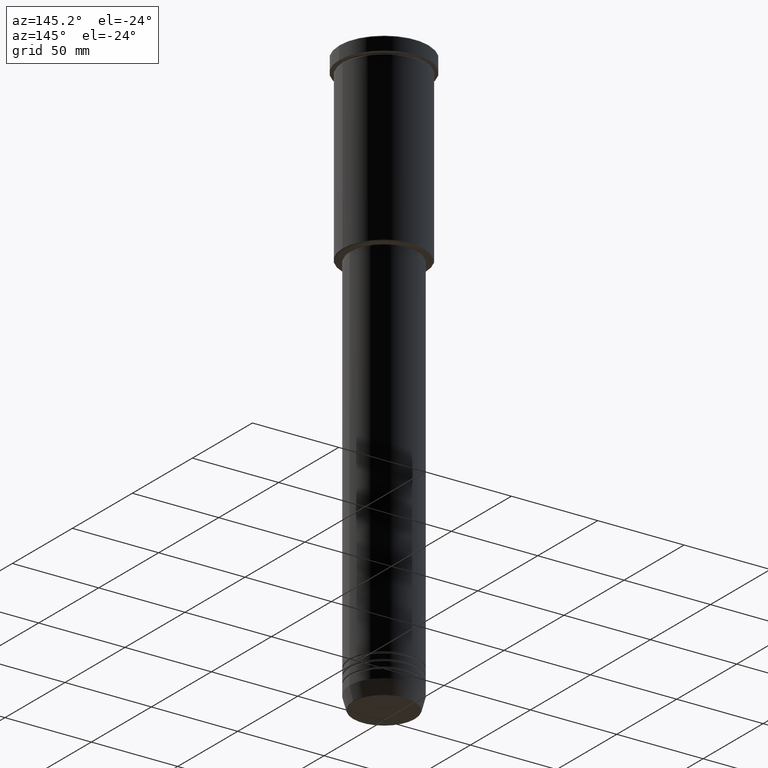
[diagram: clean part render]
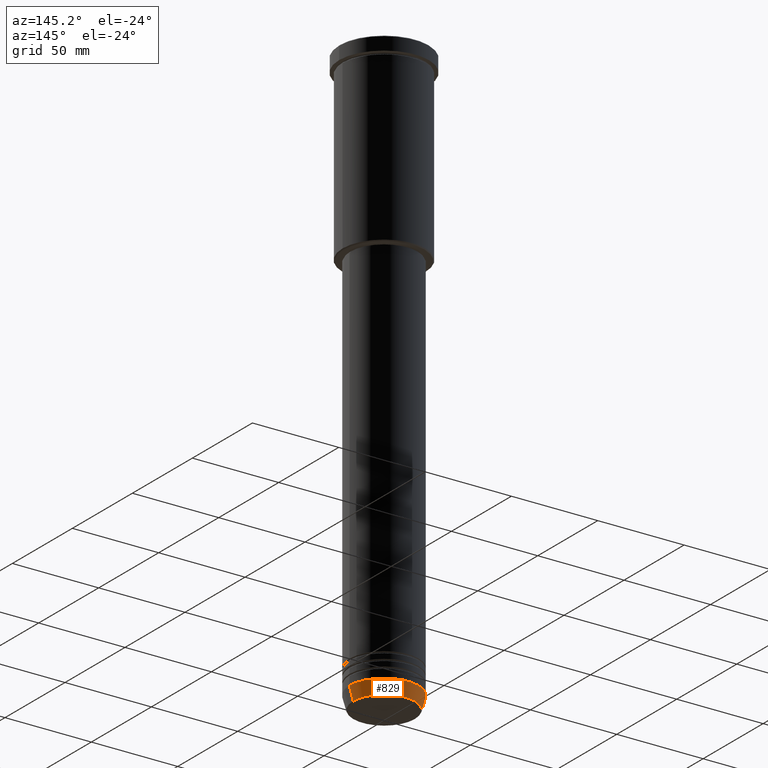
[diagram: same view with one face highlighted and labeled with its STEP entity id]
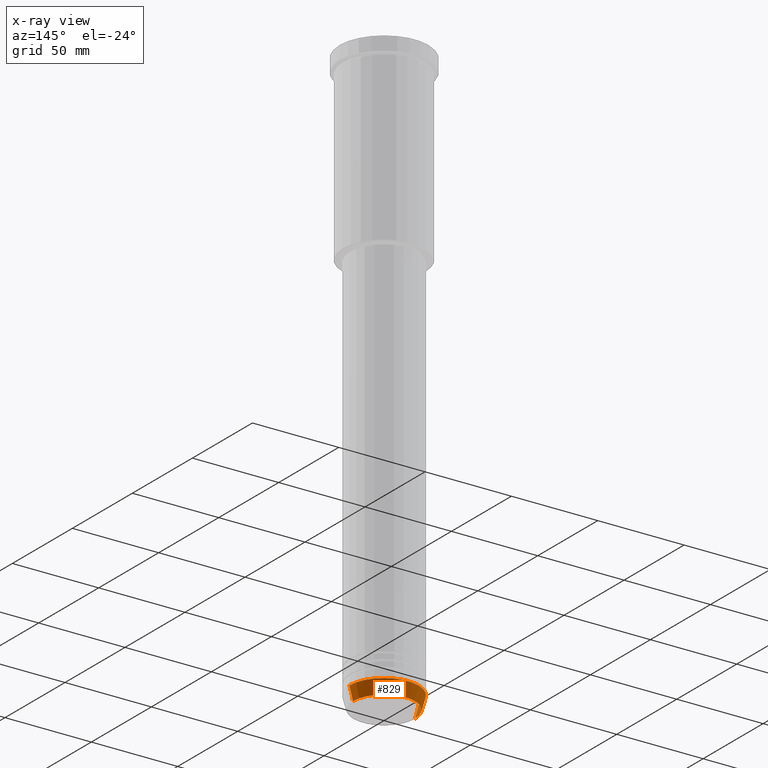
[diagram: x-ray of the same camera — body ghosted, the highlighted face saturated]
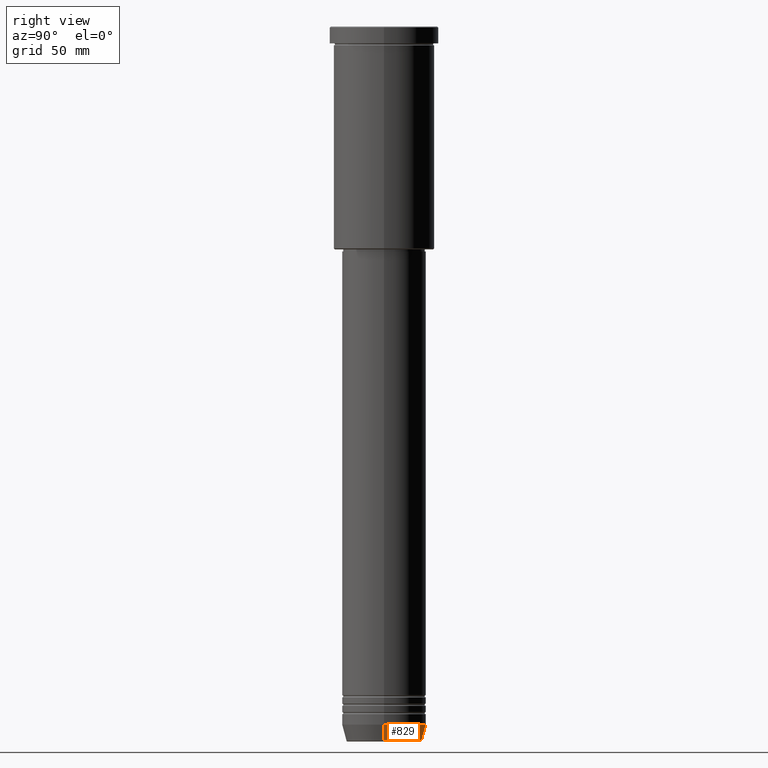
[diagram: same view with one face highlighted and labeled with its STEP entity id]
A machine part, auxiliary view. The second image highlights one B-rep face of the part: STEP entity #829.
The next image is the same camera in x-ray: the body ghosted, the highlighted face saturated — about 0% of this face is hidden behind the body in this view.
A second angle (right view) of the same face is appended — the face is thin or edge-on in the first view.
In plain terms, the highlighted conical surface has half-angle 15 deg.
Its self-contained STEP definition (entity closure, byte-faithful):
#3 = DIRECTION ( 'NONE',  ( -0.000000000000000000, -0.000000000000000000, 1.000000000000000000 ) ) ;
#34 = ORIENTED_EDGE ( 'NONE', *, *, #933, .F. ) ;
#35 = EDGE_CURVE ( 'NONE', #699, #593, #490, .T. ) ;
#46 = CIRCLE ( 'NONE', #1037, 20.00000000000000355 ) ;
#141 = VECTOR ( 'NONE', #525, 1000.000000000000114 ) ;
#188 = CARTESIAN_POINT ( 'NONE',  ( 20.00000000000000355, 0.000000000000000000, -332.0000000000000000 ) ) ;
#204 = AXIS2_PLACEMENT_3D ( 'NONE', #325, #1047, #221 ) ;
#221 = DIRECTION ( 'NONE',  ( 1.000000000000000000, 0.000000000000000000, 0.000000000000000000 ) ) ;
#256 = DIRECTION ( 'NONE',  ( 1.000000000000000000, 0.000000000000000000, 0.000000000000000000 ) ) ;
#258 = LINE ( 'NONE', #404, #141 ) ;
#311 = EDGE_LOOP ( 'NONE', ( #888, #556, #34, #1028 ) ) ;
#325 = CARTESIAN_POINT ( 'NONE',  ( 0.000000000000000000, 0.000000000000000000, -339.6294095225512706 ) ) ;
#335 = AXIS2_PLACEMENT_3D ( 'NONE', #546, #793, #256 ) ;
#369 = VERTEX_POINT ( 'NONE', #698 ) ;
#404 = CARTESIAN_POINT ( 'NONE',  ( -20.00000000000000355, 2.449293598294706907E-15, -332.0000000000000000 ) ) ;
#413 = CARTESIAN_POINT ( 'NONE',  ( 20.00000000000000355, 0.000000000000000000, -332.0000000000000000 ) ) ;
#417 = VECTOR ( 'NONE', #561, 1000.000000000000114 ) ;
#466 = LINE ( 'NONE', #188, #417 ) ;
#469 = CARTESIAN_POINT ( 'NONE',  ( 0.000000000000000000, 0.000000000000000000, -332.0000000000000000 ) ) ;
#484 = EDGE_CURVE ( 'NONE', #699, #924, #466, .T. ) ;
#490 = CIRCLE ( 'NONE', #204, 17.95570587970608045 ) ;
#498 = DIRECTION ( 'NONE',  ( 1.000000000000000000, 0.000000000000000000, 0.000000000000000000 ) ) ;
#525 = DIRECTION ( 'NONE',  ( -0.2588190451025212391, 3.169619151431771721E-17, 0.9659258262890680902 ) ) ;
#546 = CARTESIAN_POINT ( 'NONE',  ( 0.000000000000000000, 0.000000000000000000, -332.0000000000000000 ) ) ;
#556 = ORIENTED_EDGE ( 'NONE', *, *, #1078, .T. ) ;
#561 = DIRECTION ( 'NONE',  ( 0.2588190451025212391, 0.000000000000000000, 0.9659258262890680902 ) ) ;
#593 = VERTEX_POINT ( 'NONE', #672 ) ;
#645 = CARTESIAN_POINT ( 'NONE',  ( 17.95570587970608045, 0.000000000000000000, -339.6294095225512706 ) ) ;
#672 = CARTESIAN_POINT ( 'NONE',  ( -17.95570587970608045, 2.324116685748021371E-15, -339.6294095225512706 ) ) ;
#698 = CARTESIAN_POINT ( 'NONE',  ( -20.00000000000000355, 2.449293598294706907E-15, -332.0000000000000000 ) ) ;
#699 = VERTEX_POINT ( 'NONE', #645 ) ;
#759 = CONICAL_SURFACE ( 'NONE', #335, 20.00000000000000355, 0.2617993877991499629 ) ;
#793 = DIRECTION ( 'NONE',  ( -0.000000000000000000, -0.000000000000000000, 1.000000000000000000 ) ) ;
#829 = ADVANCED_FACE ( 'NONE', ( #1059 ), #759, .T. ) ;
#888 = ORIENTED_EDGE ( 'NONE', *, *, #35, .T. ) ;
#924 = VERTEX_POINT ( 'NONE', #413 ) ;
#933 = EDGE_CURVE ( 'NONE', #924, #369, #46, .T. ) ;
#1028 = ORIENTED_EDGE ( 'NONE', *, *, #484, .F. ) ;
#1037 = AXIS2_PLACEMENT_3D ( 'NONE', #469, #3, #498 ) ;
#1047 = DIRECTION ( 'NONE',  ( -0.000000000000000000, -0.000000000000000000, 1.000000000000000000 ) ) ;
#1059 = FACE_OUTER_BOUND ( 'NONE', #311, .T. ) ;
#1078 = EDGE_CURVE ( 'NONE', #593, #369, #258, .T. ) ;